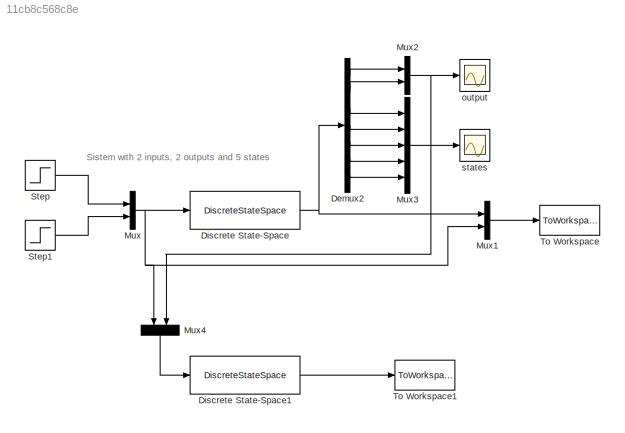
MODEL slx_11cb8c568c8e
KIND model
CONFIG AbsTol = auto
CONFIG EnableMultiTasking = off
CONFIG FixedStep = auto
CONFIG MaxStep = auto
CONFIG MinStep = auto
CONFIG RelTol = 1e-3
CONFIG SampleTimeConstraint = Unconstrained
CONFIG Solver = VariableStepAuto
CONFIG SolverName = VariableStepAuto
CONFIG StartTime = 0.0
CONFIG StopTime = Tsim
BLOCK [Demux] Demux2
  DisplayOption = bar
  Outputs = 7
  Ports = [1, 7]
BLOCK [DiscreteStateSpace] Discrete State-Space
  A = A
  B = B
  C = [C;eye(5)]
  D = [D;zeros(5,2)]
  SampleTime = Ts
  X0 = x0
BLOCK [DiscreteStateSpace] Discrete State-Space1
  A = Aob
  B = Bob
  C = Cob
  D = Dob
  SampleTime = Ts
  X0 = x0_Obs
BLOCK [Mux] Mux
  DisplayOption = bar
  Inputs = 2
  Ports = [2, 1]
BLOCK [Mux] Mux1
  DisplayOption = bar
  Inputs = 2
  Ports = [2, 1]
BLOCK [Mux] Mux2
  DisplayOption = bar
  Inputs = 2
  Ports = [2, 1]
BLOCK [Mux] Mux3
  DisplayOption = bar
  Inputs = 5
  Ports = [5, 1]
BLOCK [Mux] Mux4
  DisplayOption = bar
  Inputs = 2
  Ports = [2, 1]
BLOCK [Step] Step
  After = step1
  SampleTime = Ts
BLOCK [Step] Step1
  After = step2
  SampleTime = Ts
BLOCK [ToWorkspace] To Workspace
  FixptAsFi = on
  MaxDataPoints = inf
  Ports = [1]
  SampleTime = Ts
  Save2DSignal = 3-D array (concatenate along third dimension)
  VariableName = simout
BLOCK [ToWorkspace] To Workspace1
  FixptAsFi = on
  MaxDataPoints = inf
  Ports = [1]
  SampleTime = Ts
  Save2DSignal = 3-D array (concatenate along third dimension)
  VariableName = simoutOb
BLOCK [Scope] output
  NumInputPorts = 1
  Ports = [1]
  ScopeSpecificationString = Simulink.scopes.TimeScopeBlockCfg('CurrentConfiguration', extmgr.ConfigurationSet(extmgr.Configuration('Core','General UI',true),extmgr.Configuration('Core','Source UI',true),extmgr.Configuration('Sources','WiredSimulink',true,'DataLoggingVariableName','ScopeData1'),extmgr.Configuration('Visuals','Time Domain',true,'SerializedDisplays',{struct('MinYLimReal','-11.36919','MaxYLimReal','102.32269','Y...<+1436ch>
BLOCK [Scope] states
  NumInputPorts = 1
  Ports = [1]
  ScopeSpecificationString = Simulink.scopes.TimeScopeBlockCfg('CurrentConfiguration', extmgr.ConfigurationSet(extmgr.Configuration('Core','General UI',true),extmgr.Configuration('Core','Source UI',true),extmgr.Configuration('Sources','WiredSimulink',true,'DataLoggingVariableName','ScopeData2'),extmgr.Configuration('Visuals','Time Domain',true,'SerializedDisplays',{struct('MinYLimReal','-11.36919','MaxYLimReal','102.32269','Y...<+1469ch>
ANNOTATION (root): Sistem with 2 inputs, 2 outputs and 5 states
LINE Demux2:1 -> Mux2:1
LINE Demux2:2 -> Mux2:2
LINE Demux2:3 -> Mux3:1
LINE Demux2:4 -> Mux3:2
LINE Demux2:5 -> Mux3:3
LINE Demux2:6 -> Mux3:4
LINE Demux2:7 -> Mux3:5
LINE Discrete State-Space1:1 -> To Workspace1:1
NET Discrete State-Space:1 -> Demux2:1, Mux1:1
LINE Mux1:1 -> To Workspace:1
NET Mux2:1 -> Mux4:2, output:1
LINE Mux3:1 -> states:1
LINE Mux4:1 -> Discrete State-Space1:1
NET Mux:1 -> Discrete State-Space:1, Mux1:2, Mux4:1
LINE Step1:1 -> Mux:2
LINE Step:1 -> Mux:1
note: NET lines group one-source signal fan-out (src -> all destinations, sorted); 1:1 wires keep LINE
